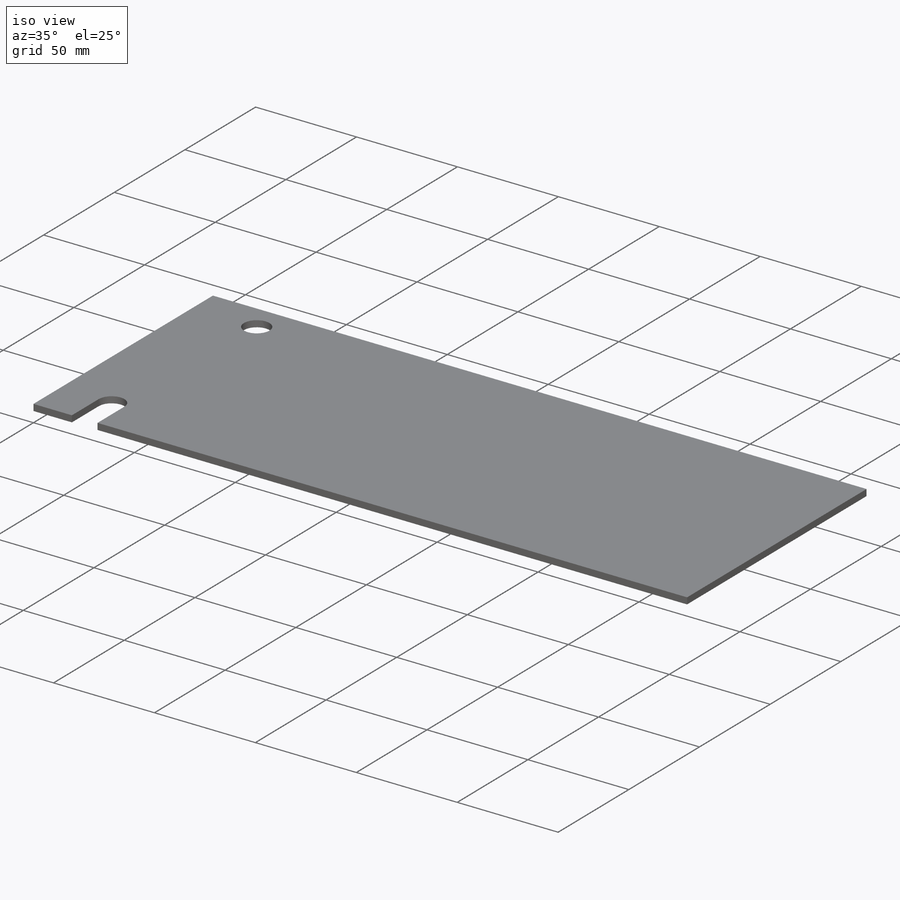
[diagram: iso view]
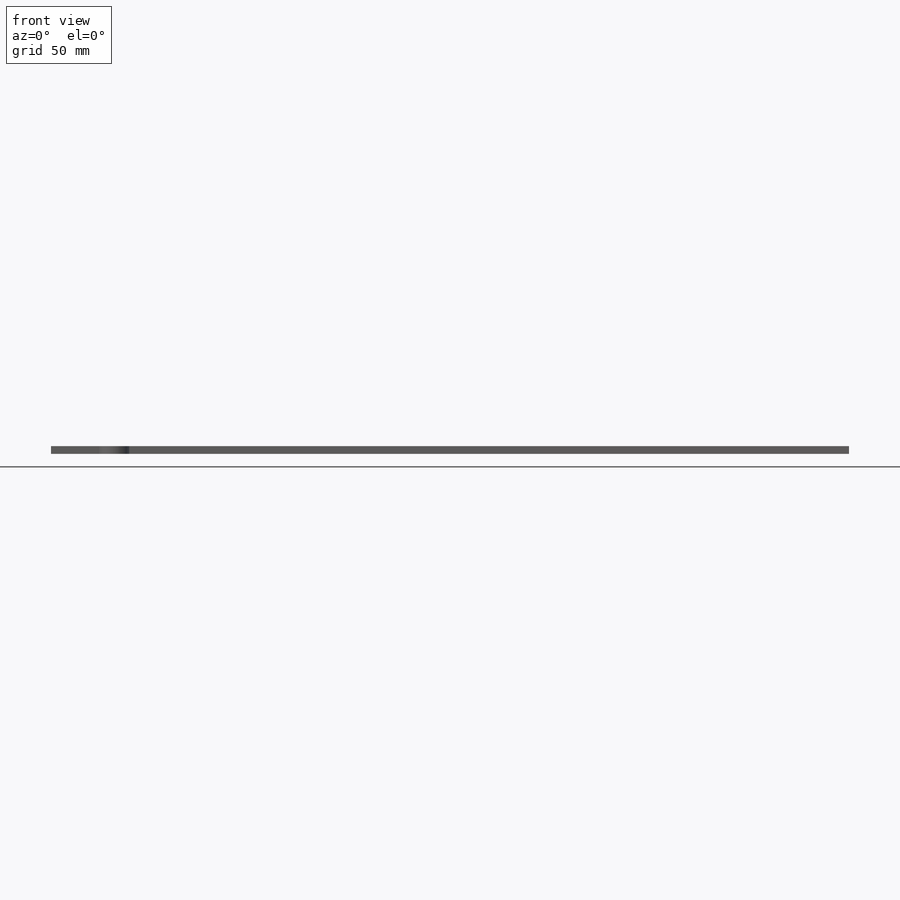
[diagram: front view]
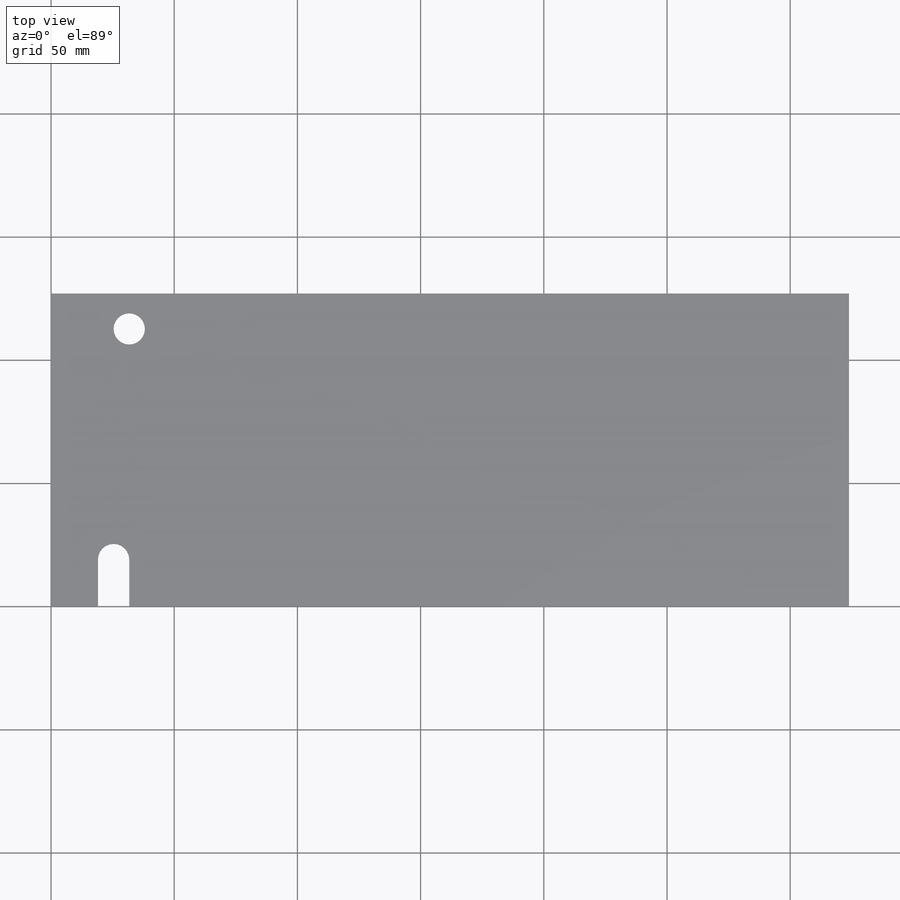
[diagram: top view]
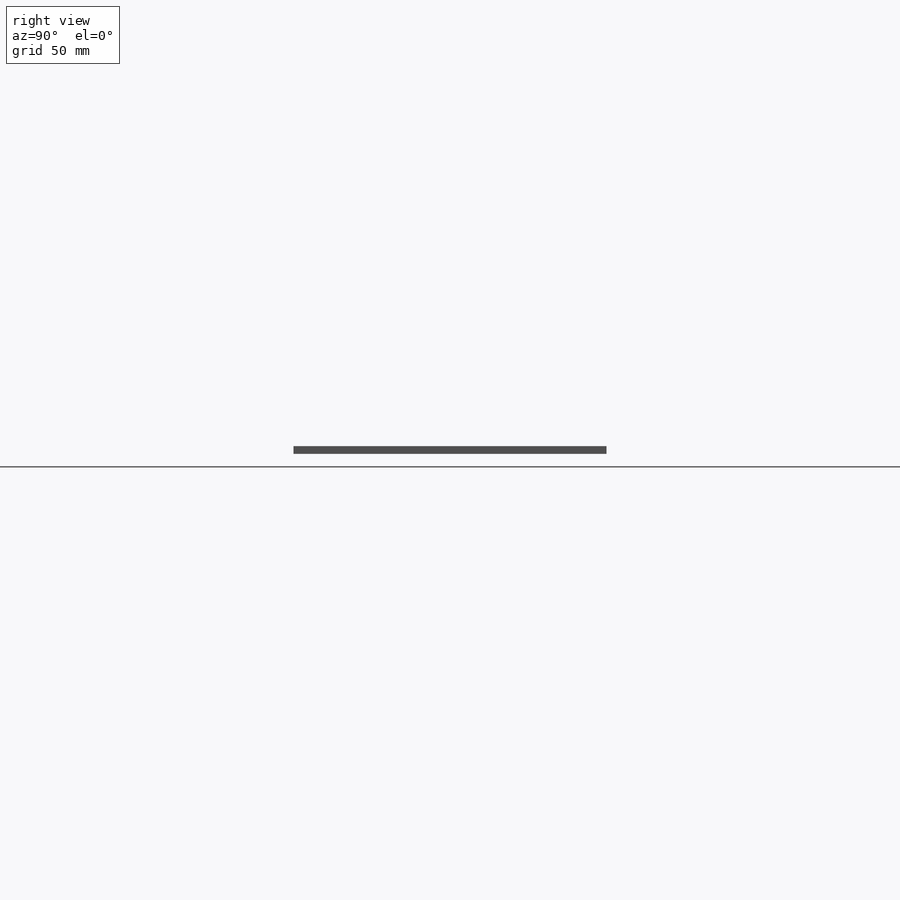
[diagram: right view]
SOLIDWORKS PART (.sldprt)
format: sldprt  version: not decoded by parser v0  size: 200,704 bytes
history: native  units: mm
features: sketch x4, material x1, extrude x1, cut_extrude x1, hole x1 (+13 scaffold rows collapsed)
feature tree (21):
  scaffold x13  (default folders/planes/origin — collapsed)
  material  "6061-T6 (SS)"
  sketch  "Sketch1"  dims[c1.D1=~39.034607mm c1.D2=~78.259401mm c2.D1=127.0mm c2.D2=323.85mm]
  extrude  "Boss-Extrude1"  Depth=3.175mm
  sketch  "Sketch2"  dims[c1.D1=~8.610644mm c1.D6=12.7mm c2.D1=12.7mm c2.D2=19.05mm c3.D1=~57.325627mm c3.D2=~37.270014mm c4.D1=1.5875mm c4.D2=1.5875mm c4.D3=19.05mm c4.D4=19.05mm c4.D5=38.1mm c4.D6=~26.740032mm c5.D1=19.05mm c5.D2=12.7mm]
  cut_extrude  "Cut-Extrude1"  [1 undecoded]
  hole  "#10 Clearance Hole1"  Diameter=5.1054mm Depth=12.7mm
  sketch  "Sketch4"
  sketch  "Sketch3"  dims[hole-wizard template sketch: 47 standard entries collapsed; hole parameters kept: c15.Hole Depth=12.7mm c15.D3=~14.816244mm c15.Drill Angle=118.0deg]
decode coverage: 5 of 7 modeling features carry decoded parameters
note: ~ marks probable driven/reference dimensions
note: 1 parameter value undecoded
note: suppression state not decoded; provenance and decode notes live in map.json
